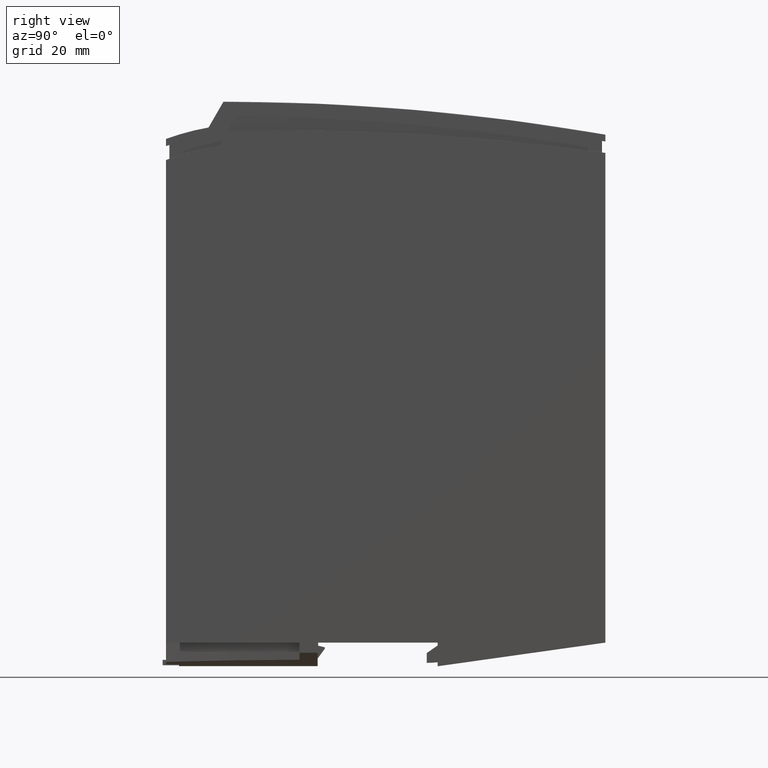
[diagram: clean part render]
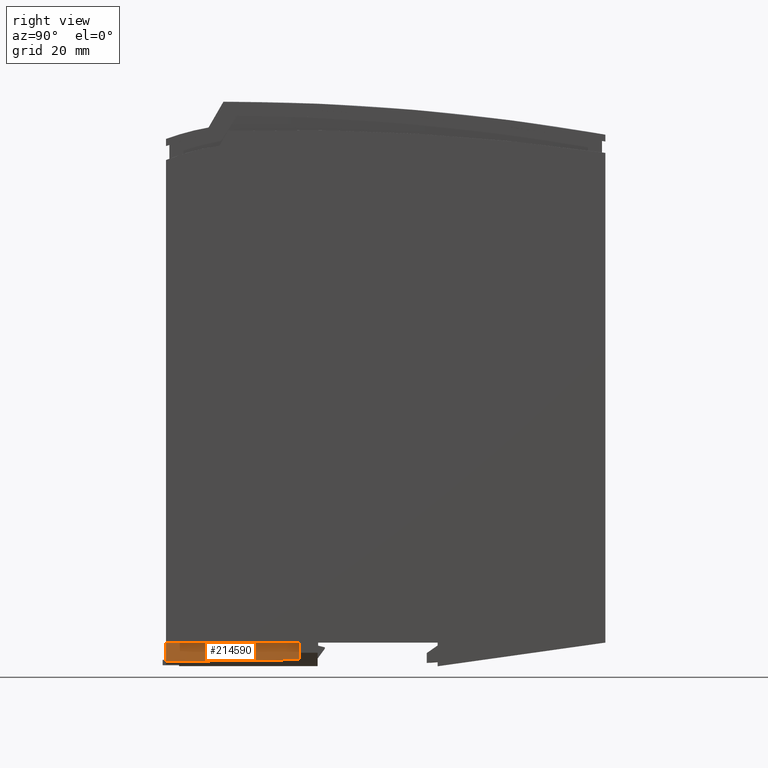
[diagram: same view with one face highlighted and labeled with its STEP entity id]
A machine part, right view. The second image highlights one B-rep face of the part: STEP entity #214590.
In plain terms, the highlighted cylindrical surface (partial cylindrical patch) has radius 430 mm, axis along (0, 0, -1).
Its self-contained STEP definition (entity closure, byte-faithful):
#4700=CARTESIAN_POINT('',(0.,41.47129019691,385.495481389));
#4710=DIRECTION('',(-1.,0.,0.));
#4720=DIRECTION('',(0.,-0.0114810397156901,-0.999934090691505));
#4730=AXIS2_PLACEMENT_3D('',#4700,#4710,#4720);
#4740=CIRCLE('',#4730,430.);
#4750=CARTESIAN_POINT('',(0.,39.5,-44.500000000002));
#4760=VERTEX_POINT('',#4750);
#4770=CARTESIAN_POINT('',(0.,0.,-42.5000000000022));
#4780=VERTEX_POINT('',#4770);
#4790=EDGE_CURVE('',#4760,#4780,#4740,.T.);
#84730=CARTESIAN_POINT('',(0.,0.,-42.5000000000022));
#84740=DIRECTION('',(-1.,0.,0.));
#84750=VECTOR('',#84740,1.);
#84760=LINE('',#84730,#84750);
#84770=CARTESIAN_POINT('',(-5.69906284337142,0.,-42.4999999998886));
#84780=VERTEX_POINT('',#84770);
#84790=EDGE_CURVE('',#4780,#84780,#84760,.T.);
#213740=CARTESIAN_POINT('',(38.53,0.,-29.5));
#213750=DIRECTION('',(0.,-1.,0.));
#213760=DIRECTION('',(0.,0.,1.));
#213770=AXIS2_PLACEMENT_3D('',#213740,#213750,#213760);
#213780=CYLINDRICAL_SURFACE('',#213770,46.1);
#213870=CARTESIAN_POINT('',(0.,41.47129019691,385.495481389));
#213880=DIRECTION('',(-1.,0.,0.));
#213890=DIRECTION('',(0.,-0.0114810397156901,-0.999934090691505));
#213900=AXIS2_PLACEMENT_3D('',#213870,#213880,#213890);
#213910=CYLINDRICAL_SURFACE('',#213900,430.);
#213920=CARTESIAN_POINT('',(-5.69906284332027,6.23206323586224E-10,
-42.5000000000625));
#213930=CARTESIAN_POINT('',(-5.65234341144857,1.6404144087636,
-42.6589505145431));
#213940=CARTESIAN_POINT('',(-5.60746215915543,3.28194619535421,
-42.8084893889175));
#213950=CARTESIAN_POINT('',(-5.56473077107385,4.92442898250694,
-42.9485953997627));
#213960=CARTESIAN_POINT('',(-5.52199938380066,6.56691173858748,
-43.0887014079573));
#213970=CARTESIAN_POINT('',(-5.48141798760111,8.21034530708734,
-43.2193745300276));
#213980=CARTESIAN_POINT('',(-5.443263064307,9.85456112642289,
-43.3405973670709));
#213990=CARTESIAN_POINT('',(-5.40510814135683,11.4987769309366,
-43.4618202030215));
#214000=CARTESIAN_POINT('',(-5.36937981104008,13.1437747641458,
-43.5735927327115));
#214010=CARTESIAN_POINT('',(-5.33631755924261,14.7893844294966,
-43.6759015160317));
#214020=CARTESIAN_POINT('',(-5.30325530729906,16.4349941021185,
-43.7782102998038));
#214030=CARTESIAN_POINT('',(-5.2728592416345,18.081215351487,
-43.8710553188197));
#214040=CARTESIAN_POINT('',(-5.24533020258669,19.7278770876394,
-43.9544271991354));
#214050=CARTESIAN_POINT('',(-5.21780116294486,21.3745388593227,
-44.0377990812501));
#214060=CARTESIAN_POINT('',(-5.193139241154,23.0216408309544,
-44.1116978106662));
#214070=CARTESIAN_POINT('',(-5.17150519369299,24.6690119614391,
-44.1761181449901));
#214080=CARTESIAN_POINT('',(-5.14987114530991,26.3163831621361,
-44.2405384820597));
#214090=CARTESIAN_POINT('',(-5.13126504194733,27.9640232063692,
-44.2954804159588));
#214100=CARTESIAN_POINT('',(-5.11580639099603,29.6117622491336,
-44.3409428433536));
#214110=CARTESIAN_POINT('',(-5.10034782845812,31.259491867906,
-44.386405010733));
#214120=CARTESIAN_POINT('',(-5.08803635730537,32.90730973767,
-44.4223888747004));
#214130=CARTESIAN_POINT('',(-5.0789486950526,34.555408817043,
-44.4488994147705));
#214140=CARTESIAN_POINT('',(-5.06986121986584,36.2034739709338,
-44.4754094091314));
#214150=CARTESIAN_POINT('',(-5.06399844476817,37.851718388663,
-44.4924435452883));
#214160=CARTESIAN_POINT('',(-5.06139823405468,39.5,-44.500000000002));
#214170=B_SPLINE_CURVE_WITH_KNOTS('',3,(#213920,#213930,#213940,#213950,
#213960,#213970,#213980,#213990,#214000,#214010,#214020,#214030,#214040,
#214050,#214060,#214070,#214080,#214090,#214100,#214110,#214120,#214130,
#214140,#214150,#214160),.UNSPECIFIED.,.F.,.F.,(4,3,3,3,3,3,3,3,4),(0.,
4.94667213094189,9.89388430436179,14.8412711364189,19.7884782002047,
24.7351646291252,29.6810061268739,34.6259989876421,39.5709158003537),
.UNSPECIFIED.);
#214180=SURFACE_CURVE('',#214170,(#213910,#213780),.CURVE_3D.);
#214190=CARTESIAN_POINT('',(-5.06139823405462,39.5,-44.500000000002));
#214200=VERTEX_POINT('',#214190);
#214210=EDGE_CURVE('',#84780,#214200,#214180,.T.);
#214480=ORIENTED_EDGE('',*,*,#214210,.T.);
#214490=ORIENTED_EDGE('',*,*,#84790,.T.);
#214500=ORIENTED_EDGE('',*,*,#4790,.T.);
#214510=CARTESIAN_POINT('',(0.,39.5,-44.500000000002));
#214520=DIRECTION('',(-1.,0.,0.));
#214530=VECTOR('',#214520,1.);
#214540=LINE('',#214510,#214530);
#214550=EDGE_CURVE('',#4760,#214200,#214540,.T.);
#214560=ORIENTED_EDGE('',*,*,#214550,.F.);
#214570=EDGE_LOOP('',(#214560,#214500,#214490,#214480));
#214580=FACE_OUTER_BOUND('',#214570,.T.);
#214590=ADVANCED_FACE('',(#214580),#213910,.T.);